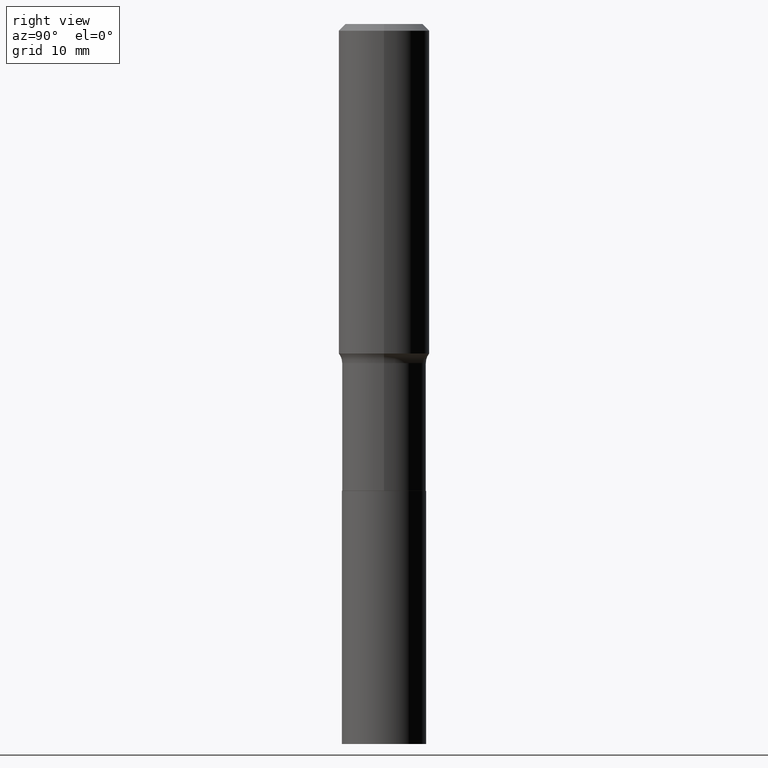
[diagram: clean part render]
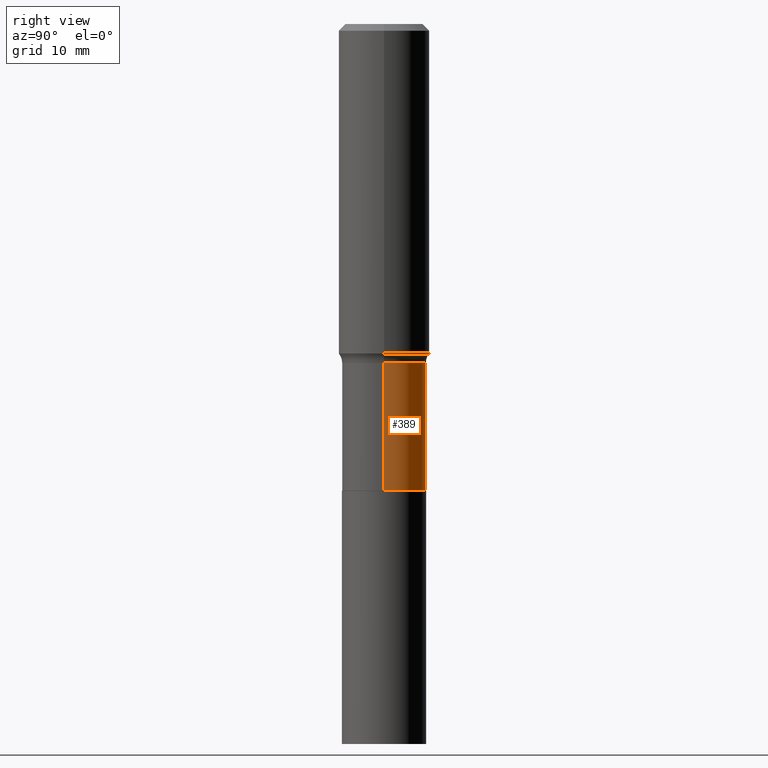
[diagram: same view with one face highlighted and labeled with its STEP entity id]
A machine part, right view. The second image highlights one B-rep face of the part: STEP entity #389.
In plain terms, the highlighted cylindrical surface (partial cylindrical patch) has radius 5.5563 mm, axis along (-0, 0, 1).
Its self-contained STEP definition (entity closure, byte-faithful):
#4 = CARTESIAN_POINT ( 'NONE',  ( -0.2187500000000000278, 1.554312234475219354E-15, -1.076017050993260762E-29 ) ) ;
#9 = CARTESIAN_POINT ( 'NONE',  ( 0.2187500000000000555, -9.993317888036847882E-15, -2.424700000000000522 ) ) ;
#12 = VECTOR ( 'NONE', #141, 39.37007874015748143 ) ;
#26 = CYLINDRICAL_SURFACE ( 'NONE', #82, 0.2187500000000000278 ) ;
#32 = CARTESIAN_POINT ( 'NONE',  ( -0.2187499999999999445, -5.753881929924311929E-15, -1.761600000000000055 ) ) ;
#41 = VERTEX_POINT ( 'NONE', #32 ) ;
#57 = CIRCLE ( 'NONE', #73, 0.2187499999999999445 ) ;
#62 = VERTEX_POINT ( 'NONE', #103 ) ;
#65 = AXIS2_PLACEMENT_3D ( 'NONE', #445, #153, #372 ) ;
#69 = VERTEX_POINT ( 'NONE', #391 ) ;
#73 = AXIS2_PLACEMENT_3D ( 'NONE', #444, #122, #79 ) ;
#79 = DIRECTION ( 'NONE',  ( 1.000000000000000000, -6.982962677686269077E-15, 0.000000000000000000 ) ) ;
#82 = AXIS2_PLACEMENT_3D ( 'NONE', #350, #139, #316 ) ;
#103 = CARTESIAN_POINT ( 'NONE',  ( -0.2187500000000000555, -5.753881929924311140E-15, -2.424700000000000522 ) ) ;
#122 = DIRECTION ( 'NONE',  ( -2.445468806185136597E-29, 3.491481338843145583E-15, 1.000000000000000000 ) ) ;
#139 = DIRECTION ( 'NONE',  ( -2.445468806185136597E-29, 3.491481338843145583E-15, 1.000000000000000000 ) ) ;
#141 = DIRECTION ( 'NONE',  ( -2.445468806185136877E-29, 3.491481338843145188E-15, 1.000000000000000000 ) ) ;
#153 = DIRECTION ( 'NONE',  ( -2.445468806185136597E-29, 3.491481338843145583E-15, 1.000000000000000000 ) ) ;
#158 = LINE ( 'NONE', #328, #455 ) ;
#159 = EDGE_CURVE ( 'NONE', #305, #62, #365, .T. ) ;
#173 = ORIENTED_EDGE ( 'NONE', *, *, #259, .F. ) ;
#205 = EDGE_LOOP ( 'NONE', ( #416, #371, #173, #345 ) ) ;
#218 = EDGE_CURVE ( 'NONE', #305, #69, #158, .T. ) ;
#259 = EDGE_CURVE ( 'NONE', #69, #41, #57, .T. ) ;
#305 = VERTEX_POINT ( 'NONE', #9 ) ;
#316 = DIRECTION ( 'NONE',  ( 1.000000000000000000, -6.982962677686266711E-15, 4.876176775795935232E-29 ) ) ;
#328 = CARTESIAN_POINT ( 'NONE',  ( 0.2187500000000000278, -1.527523085743871040E-15, 1.066663669705361025E-29 ) ) ;
#345 = ORIENTED_EDGE ( 'NONE', *, *, #218, .F. ) ;
#350 = CARTESIAN_POINT ( 'NONE',  ( 0.000000000000000000, 0.000000000000000000, 0.000000000000000000 ) ) ;
#365 = CIRCLE ( 'NONE', #65, 0.2187500000000000555 ) ;
#367 = DIRECTION ( 'NONE',  ( -2.445468806185136877E-29, 3.491481338843145188E-15, 1.000000000000000000 ) ) ;
#371 = ORIENTED_EDGE ( 'NONE', *, *, #434, .T. ) ;
#372 = DIRECTION ( 'NONE',  ( 1.000000000000000000, -6.982962677686270655E-15, 0.000000000000000000 ) ) ;
#389 = ADVANCED_FACE ( 'NONE', ( #468 ), #26, .T. ) ;
#391 = CARTESIAN_POINT ( 'NONE',  ( 0.2187499999999999445, -7.678116612249955974E-15, -1.761600000000000055 ) ) ;
#416 = ORIENTED_EDGE ( 'NONE', *, *, #159, .T. ) ;
#434 = EDGE_CURVE ( 'NONE', #62, #41, #461, .T. ) ;
#444 = CARTESIAN_POINT ( 'NONE',  ( 4.307937848975737218E-29, -6.150593526506085920E-15, -1.761600000000000055 ) ) ;
#445 = CARTESIAN_POINT ( 'NONE',  ( 5.929528214357101912E-29, -8.465794802292976250E-15, -2.424700000000000522 ) ) ;
#455 = VECTOR ( 'NONE', #367, 39.37007874015748143 ) ;
#461 = LINE ( 'NONE', #4, #12 ) ;
#468 = FACE_OUTER_BOUND ( 'NONE', #205, .T. ) ;